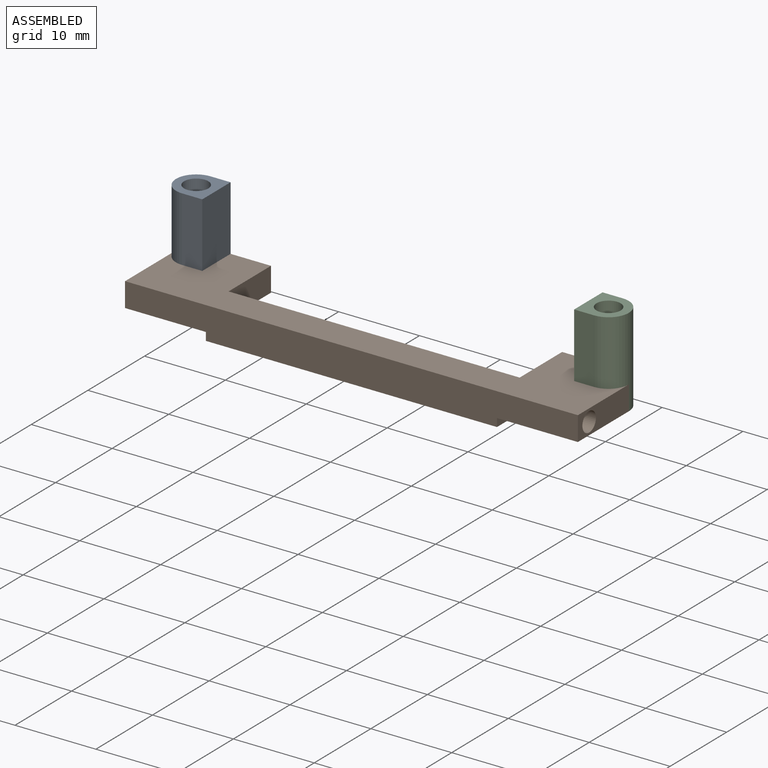
[diagram: assembled view]
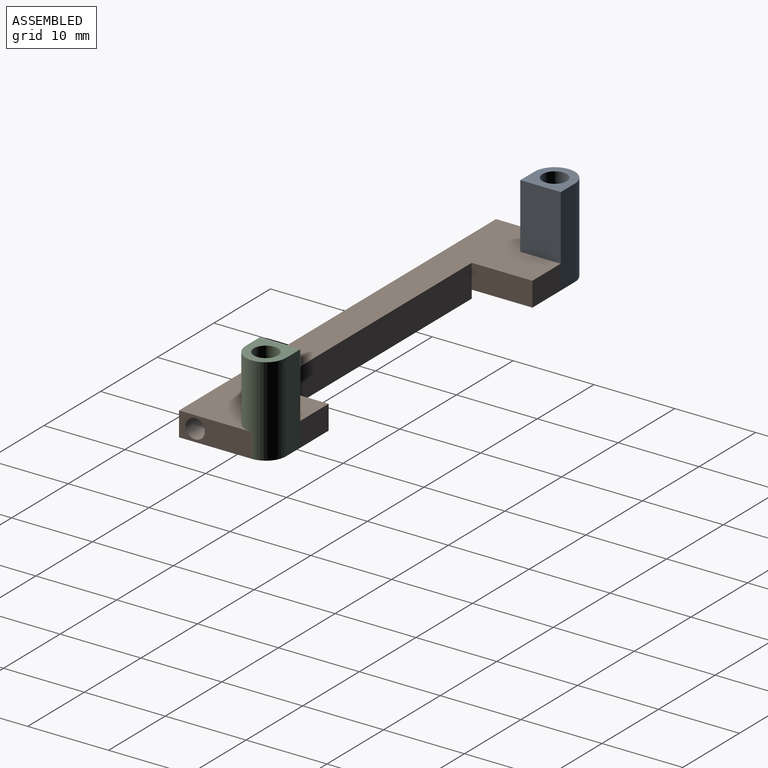
[diagram: assembled view, second angle]
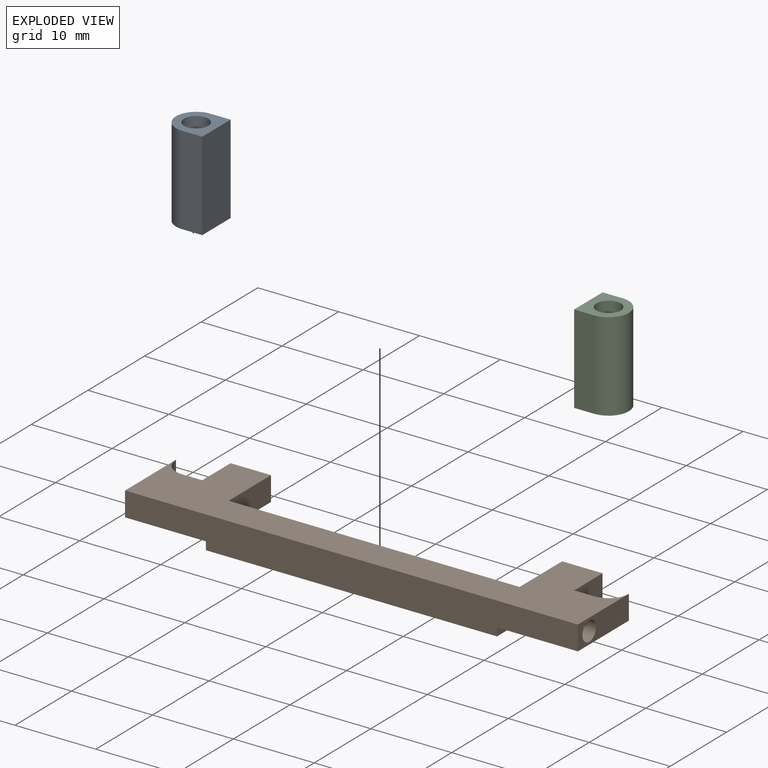
[diagram: exploded view]
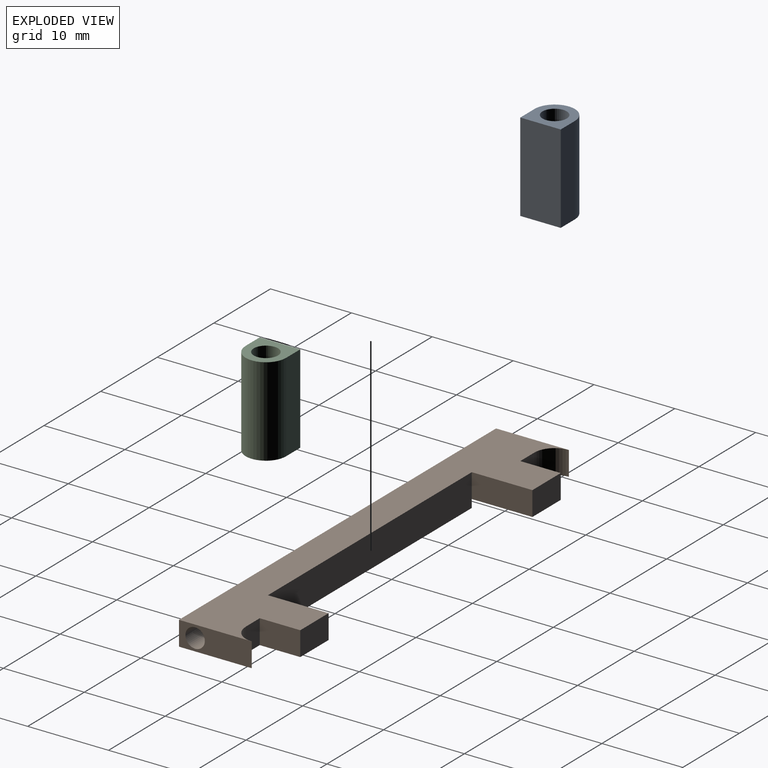
[diagram: exploded view, second angle]
ASSEMBLY  parts=3 mates=2
PART A: 7 faces, bbox 5x5x11 mm
  f0: plane 11x2.5mm, normal (0,1,0), area 27.5mm2, adj f1,f4,f5,f6
  f1: cylinder r=2.5mm len=11mm, axis (0,0,-1), area 86.4mm2, adj f0,f2,f5,f6
  f2: plane 11x2.5mm, normal (0,-1,0), area 27.5mm2, adj f1,f4,f5,f6
  f3: cylinder r=1.5mm len=11mm, axis (0,0,-1), area 103.7mm2, adj f5,f6
  f4: plane 11x5mm, normal (1,0,0), area 55mm2, adj f0,f2,f5,f6
  f5: plane 5x5mm, normal (0,0,1), area 15.2mm2, adj f0,f1,f2,f3,f4
  f6: plane 5x5mm, normal (0,0,-1), area 15.2mm2, adj f0,f1,f2,f3,f4
PART B: 22 faces, bbox 56x11.5x4 mm
  f0: plane 11.5x10mm, normal (0,0,-1), area 91.3mm2, adj f1,f2,f3,f4,f5,f6,f7,f15
  f1: plane 9x3mm, normal (1,0,0), area 22.5mm2, adj f0,f2,f15,f16,f18
  f2: cylinder r=2.5mm len=3mm, axis (0,0,-1), area 11.8mm2, adj f0,f1,f3,f16
  f3: plane 3x0.01mm, normal (-1,0,0), area 0mm2, adj f0,f2,f4,f16
  f4: plane 3x2.5mm, normal (0,1,0), area 7.5mm2, adj f0,f3,f5,f16
  f5: plane 5.01x3mm, normal (1,0,0), area 15mm2, adj f0,f4,f6,f16
  f6: plane 5x3mm, normal (0,1,0), area 15mm2, adj f0,f5,f7,f16
  f7: plane 7.5x3mm, normal (-1,0,0), area 22.5mm2, adj f0,f6,f8,f16
  f8: plane 36x4mm, normal (0,1,0), area 144mm2, adj f7,f9,f16,f19,f20,f21
  f9: plane 7.5x3mm, normal (1,0,0), area 22.5mm2, adj f8,f10,f16,f17
  f10: plane 5x3mm, normal (0,1,0), area 15mm2, adj f9,f11,f16,f17
  f11: plane 5x3mm, normal (-1,0,0), area 15mm2, adj f10,f12,f16,f17
  f12: plane 3x2.5mm, normal (0,1,0), area 7.5mm2, adj f11,f13,f16,f17
  f13: cylinder r=2.5mm len=3mm, axis (0,0,-1), area 11.8mm2, adj f12,f14,f16,f17
  f14: plane 9x3mm, normal (-1,0,0), area 22.5mm2, adj f13,f15,f16,f17,f18
  f15: plane 56x4mm, normal (0,-1,0), area 204mm2, adj f0,f1,f14,f16,f17,f19,f20,f21
  f16: plane 56x11.5mm, normal (0,0,1), area 326.7mm2, adj f1,f2,f3,f4,f5,f6,f7,f8
  f17: plane 11.5x10mm, normal (0,0,-1), area 91.3mm2, adj f9,f10,f11,f12,f13,f14,f15,f19
  f18: cylinder r=1.2mm len=56mm, axis (-1,0,0), area 422.2mm2, adj f1,f14
  f19: plane 4x1mm, normal (-1,0,0), area 4mm2, adj f8,f15,f17,f21
  f20: plane 4x1mm, normal (1,0,0), area 4mm2, adj f0,f8,f15,f21
  f21: plane 36x4mm, normal (0,0,-1), area 144mm2, adj f8,f15,f19,f20
PART C: 8 faces, bbox 5x5x11 mm
  f0: cylinder r=2.5mm len=11mm, axis (0,0,-1), area 86.4mm2, adj f1,f5,f6,f7
  f1: plane 11x2.5mm, normal (0,1,0), area 27.5mm2, adj f0,f2,f6,f7
  f2: plane 11x5.01mm, normal (-1,0,0), area 55.1mm2, adj f1,f3,f6,f7
  f3: plane 11x2.5mm, normal (0,-1,0), area 27.5mm2, adj f2,f5,f6,f7
  f4: cylinder r=1.5mm len=11mm, axis (0,0,-1), area 103.7mm2, adj f6,f7
  f5: plane 11x0.01mm, normal (1,0,0), area 0.1mm2, adj f0,f3,f6,f7
  f6: plane 5.01x5mm, normal (0,0,1), area 15.3mm2, adj f0,f1,f2,f3,f4,f5
  f7: plane 5.01x5mm, normal (0,0,-1), area 15.3mm2, adj f0,f1,f2,f3,f4,f5
PLACE A t=(25.36,22.91,4.27)mm
PLACE B t=(25.36,22.91,4.27)mm
PLACE C t=(25.36,22.91,4.27)mm
MATE fastened C.f4 <-> B.f2  axis (0,0,-1) through (76.36,22.91,4.27)mm
MATE fastened B.f13 <-> A.f3  axis (0,0,-1) through (25.36,22.91,4.27)mm
